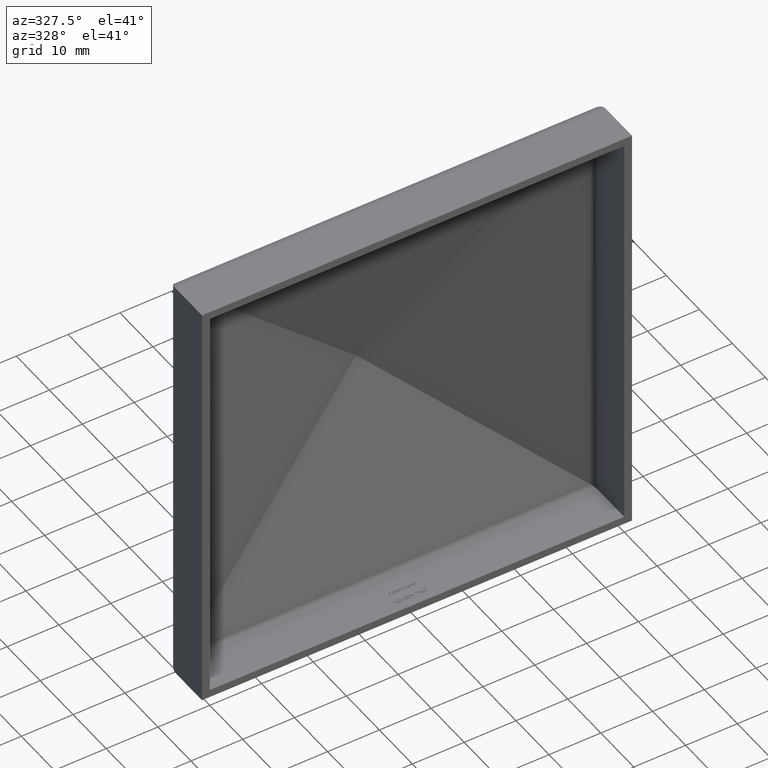
[diagram: clean part render]
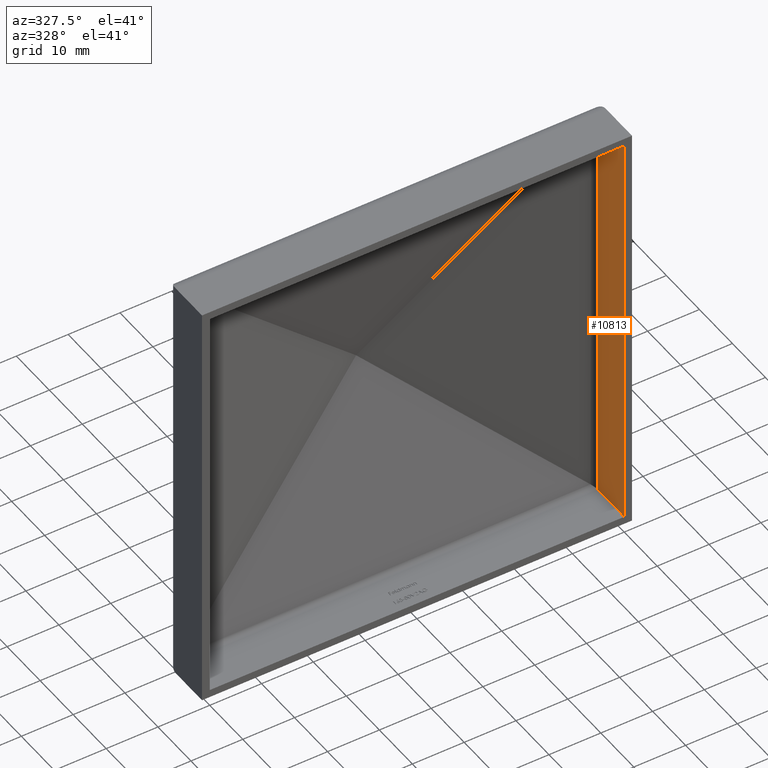
[diagram: same view with one face highlighted and labeled with its STEP entity id]
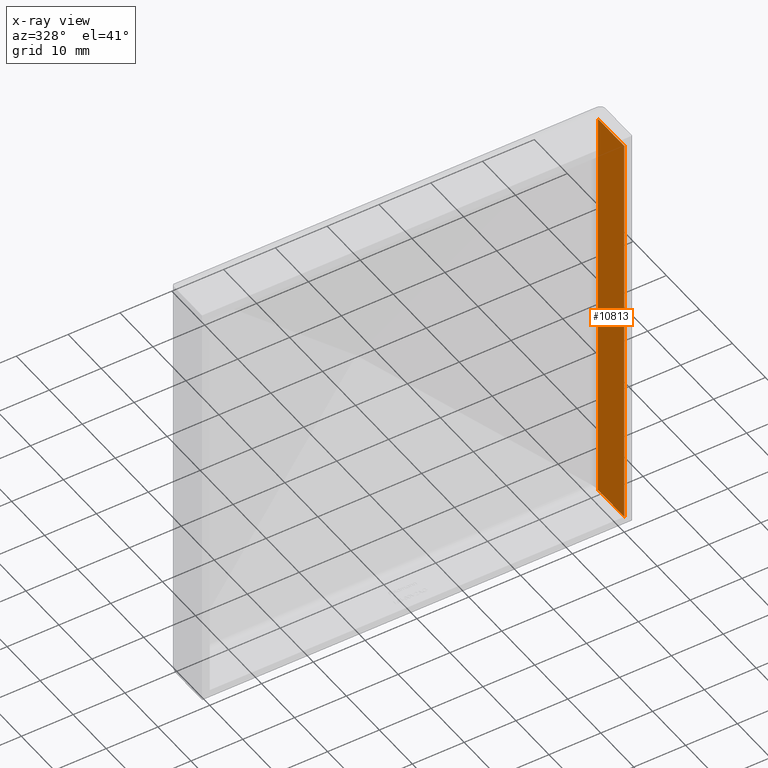
[diagram: x-ray of the same camera — body ghosted, the highlighted face saturated]
A machine part, auxiliary view. The second image highlights one B-rep face of the part: STEP entity #10813.
The next image is the same camera in x-ray: the body ghosted, the highlighted face saturated — about 0% of this face is hidden behind the body in this view.
In plain terms, the highlighted planar face has unit normal (-1, 0, 0).
Its self-contained STEP definition (entity closure, byte-faithful):
#146 = VERTEX_POINT ( 'NONE', #2941 ) ;
#324 = EDGE_LOOP ( 'NONE', ( #8047, #2489, #575, #11702 ) ) ;
#575 = ORIENTED_EDGE ( 'NONE', *, *, #9294, .F. ) ;
#1096 = VERTEX_POINT ( 'NONE', #3686 ) ;
#1504 = CARTESIAN_POINT ( 'NONE',  ( 40.00000000000000700, 8.030986300481741200, 39.99999999999999300 ) ) ;
#2489 = ORIENTED_EDGE ( 'NONE', *, *, #12823, .T. ) ;
#2900 = VECTOR ( 'NONE', #3778, 1000.000000000000000 ) ;
#2941 = CARTESIAN_POINT ( 'NONE',  ( 39.99999999999999300, 8.030986300481739400, -40.00000000000000700 ) ) ;
#3017 = LINE ( 'NONE', #8740, #3352 ) ;
#3132 = DIRECTION ( 'NONE',  ( -1.000000000000000000, 0.0000000000000000000, 8.360113137237623700E-017 ) ) ;
#3352 = VECTOR ( 'NONE', #4573, 1000.000000000000000 ) ;
#3686 = CARTESIAN_POINT ( 'NONE',  ( 39.99999999999999300, 0.0000000000000000000, -39.99999999999999300 ) ) ;
#3707 = LINE ( 'NONE', #9110, #11236 ) ;
#3778 = DIRECTION ( 'NONE',  ( -8.360113137237623700E-017, 0.0000000000000000000, -1.000000000000000000 ) ) ;
#4573 = DIRECTION ( 'NONE',  ( 0.0000000000000000000, -1.000000000000000000, 0.0000000000000000000 ) ) ;
#4764 = VECTOR ( 'NONE', #10688, 1000.000000000000000 ) ;
#5342 = CARTESIAN_POINT ( 'NONE',  ( 39.99999999999999300, 25.00000000000000000, -41.49999999999999300 ) ) ;
#5405 = CARTESIAN_POINT ( 'NONE',  ( 40.00000000000000000, 0.0000000000000000000, 40.00000000000000700 ) ) ;
#5965 = AXIS2_PLACEMENT_3D ( 'NONE', #5342, #3132, #6414 ) ;
#5971 = EDGE_CURVE ( 'NONE', #146, #7387, #9982, .T. ) ;
#6365 = PLANE ( 'NONE',  #5965 ) ;
#6414 = DIRECTION ( 'NONE',  ( 8.360113137237623700E-017, 0.0000000000000000000, 1.000000000000000000 ) ) ;
#7387 = VERTEX_POINT ( 'NONE', #1504 ) ;
#7611 = CARTESIAN_POINT ( 'NONE',  ( 39.99999999999999300, 8.030986300481741200, -41.49999999999999300 ) ) ;
#7882 = CARTESIAN_POINT ( 'NONE',  ( 39.99999999999999300, 0.0000000000000000000, -41.49999999999999300 ) ) ;
#8047 = ORIENTED_EDGE ( 'NONE', *, *, #5971, .F. ) ;
#8703 = FACE_OUTER_BOUND ( 'NONE', #324, .T. ) ;
#8740 = CARTESIAN_POINT ( 'NONE',  ( 40.00000000000000000, 25.00000000000000000, 40.00000000000000700 ) ) ;
#9110 = CARTESIAN_POINT ( 'NONE',  ( 39.99999999999999300, 25.00000000000000000, -39.99999999999999300 ) ) ;
#9294 = EDGE_CURVE ( 'NONE', #10013, #1096, #12878, .T. ) ;
#9982 = LINE ( 'NONE', #7611, #4764 ) ;
#10013 = VERTEX_POINT ( 'NONE', #5405 ) ;
#10257 = EDGE_CURVE ( 'NONE', #7387, #10013, #3017, .T. ) ;
#10688 = DIRECTION ( 'NONE',  ( 8.360113137237623700E-017, 0.0000000000000000000, 1.000000000000000000 ) ) ;
#10813 = ADVANCED_FACE ( 'NONE', ( #8703 ), #6365, .T. ) ;
#11236 = VECTOR ( 'NONE', #13280, 1000.000000000000000 ) ;
#11702 = ORIENTED_EDGE ( 'NONE', *, *, #10257, .F. ) ;
#12823 = EDGE_CURVE ( 'NONE', #146, #1096, #3707, .T. ) ;
#12878 = LINE ( 'NONE', #7882, #2900 ) ;
#13280 = DIRECTION ( 'NONE',  ( 0.0000000000000000000, -1.000000000000000000, 0.0000000000000000000 ) ) ;